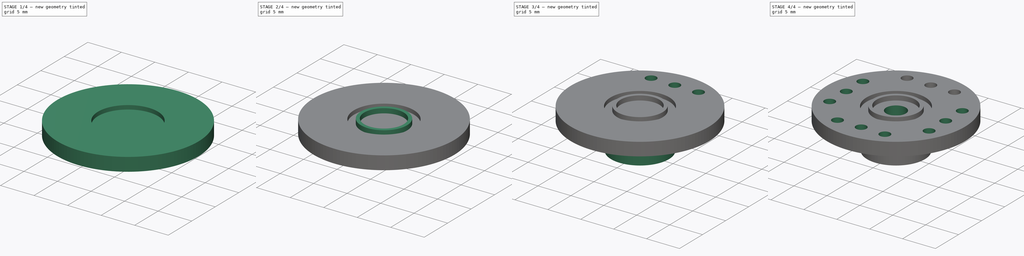
[diagram: build sequence overview — one tinted view per stage of 4, left to right]
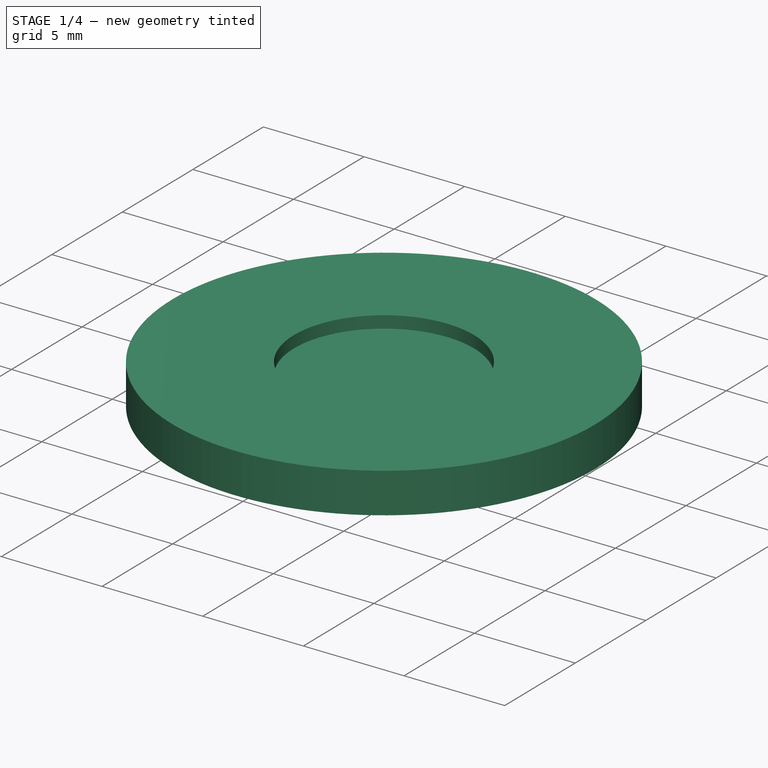
[diagram: stage 1 of 4 — iso view after this stage's code; geometry added in this stage tinted green]
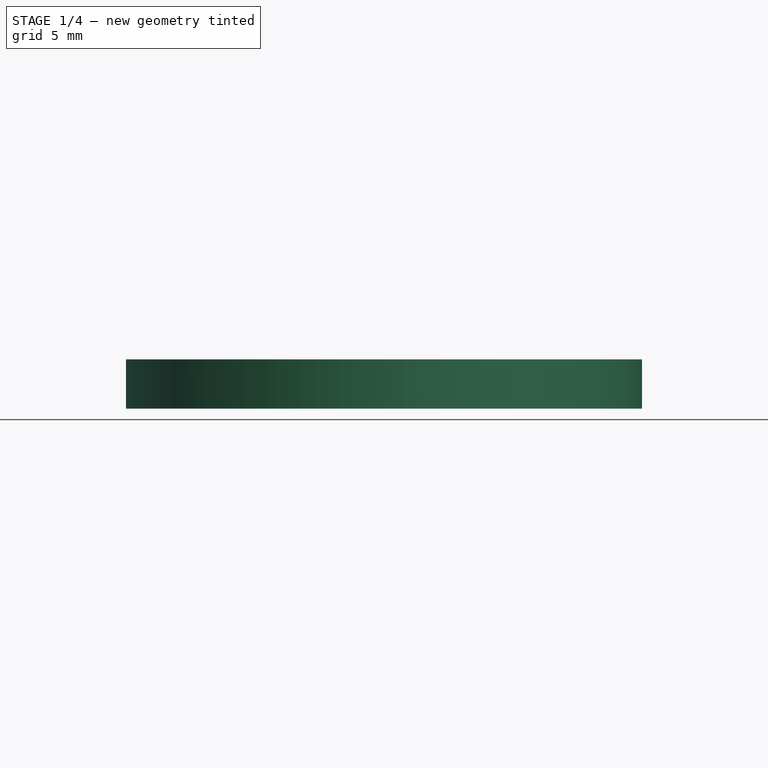
[diagram: stage 1 of 4 — front view after this stage's code; geometry added in this stage tinted green]
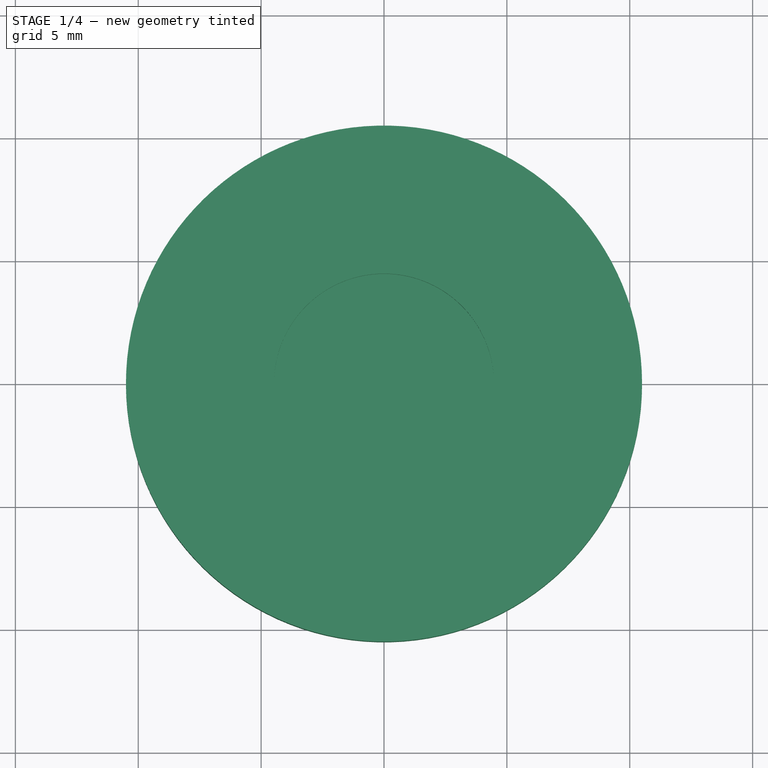
[diagram: stage 1 of 4 — top view after this stage's code; geometry added in this stage tinted green]
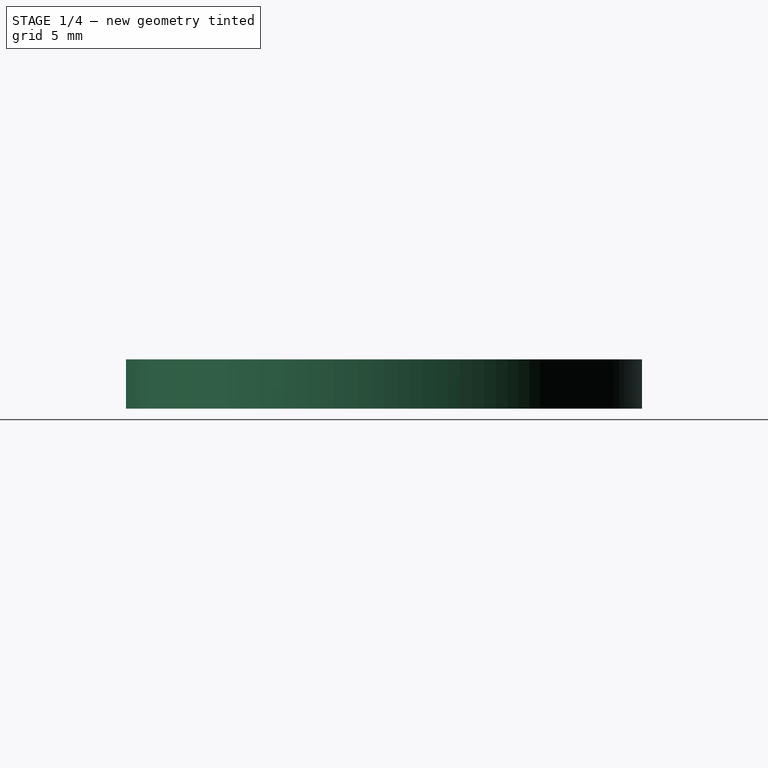
[diagram: stage 1 of 4 — right view after this stage's code; geometry added in this stage tinted green]
FCSTD DOCUMENT  (FreeCAD 0.14R3702 (Git))
Label: SM-S4303R-small-rounded-horn
License: CC-BY 3.0
LicenseURL: http://creativecommons.org/licenses/by/3.0/
objects: Sketcher::SketchObject×8, PartDesign::Pad×4, PartDesign::Pocket×4, PartDesign::PolarPattern×1, Part::Feature×1
note: 26 computed .brp shape members not serialized (recipe doc carries the construction recipe); baked Part::Feature solids carry a one-line shape summary decoded from their .brp

FEATURE [Sketcher::SketchObject] Sketch  label="horn-body-1-sketch"
  sketch-geometry (1):
    g0: Circle CenterX=0 CenterY=0 CenterZ=0 NormalX=0 NormalY=0 NormalZ=1 Radius=10.5
  constraints (2):
    c: Coincident(g0,g-1)
    c: Radius(g0) = 10.5
FEATURE [PartDesign::Pad] Pad  label="horn-body"
  Length = 2
  Length2 = 100
  Sketch = -> Sketch
  Type = 0
FEATURE [Sketcher::SketchObject] Sketch001  label="top-part-1-sketch"
  Placement = pos=(0,0,2) rot=(0,0,1;0rad)
  Support = -> Pad [Face3]
  sketch-geometry (1):
    g0: Circle CenterX=0 CenterY=0 CenterZ=0 NormalX=0 NormalY=0 NormalZ=1 Radius=4.475
  constraints (2):
    c: Coincident(g0,g-1)
    c: Radius(g0) = 4.475
FEATURE [PartDesign::Pocket] Pocket  label="top-part-1"
  Length = 0.6
  Sketch = -> Sketch001
  Type = 0
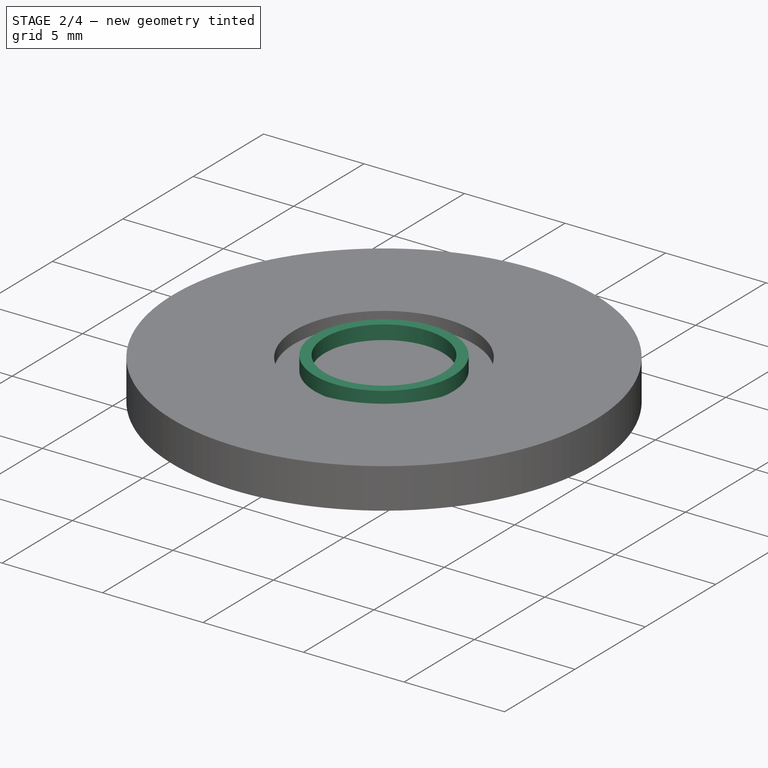
[diagram: stage 2 of 4 — iso view after this stage's code; geometry added in this stage tinted green]
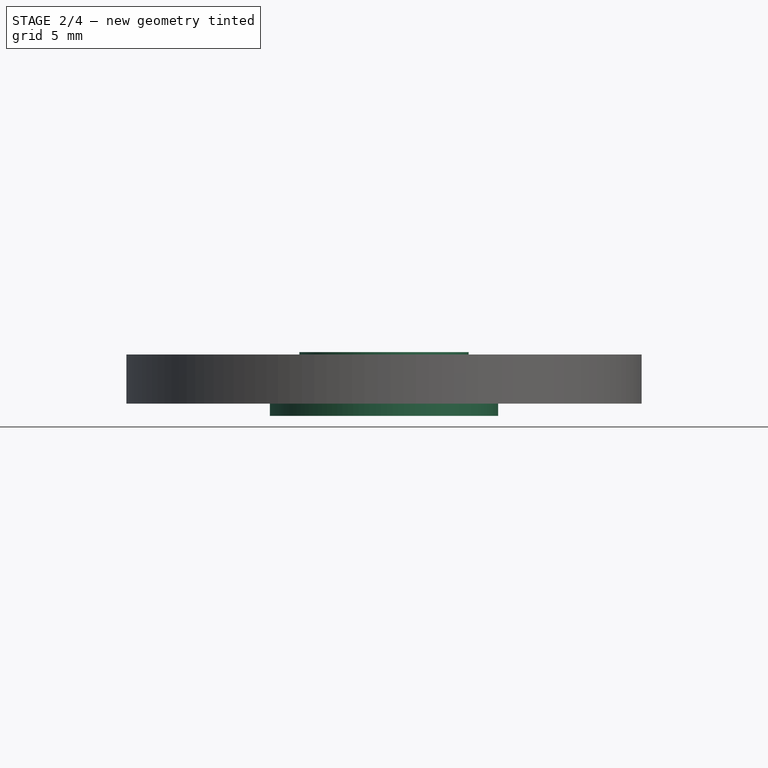
[diagram: stage 2 of 4 — front view after this stage's code; geometry added in this stage tinted green]
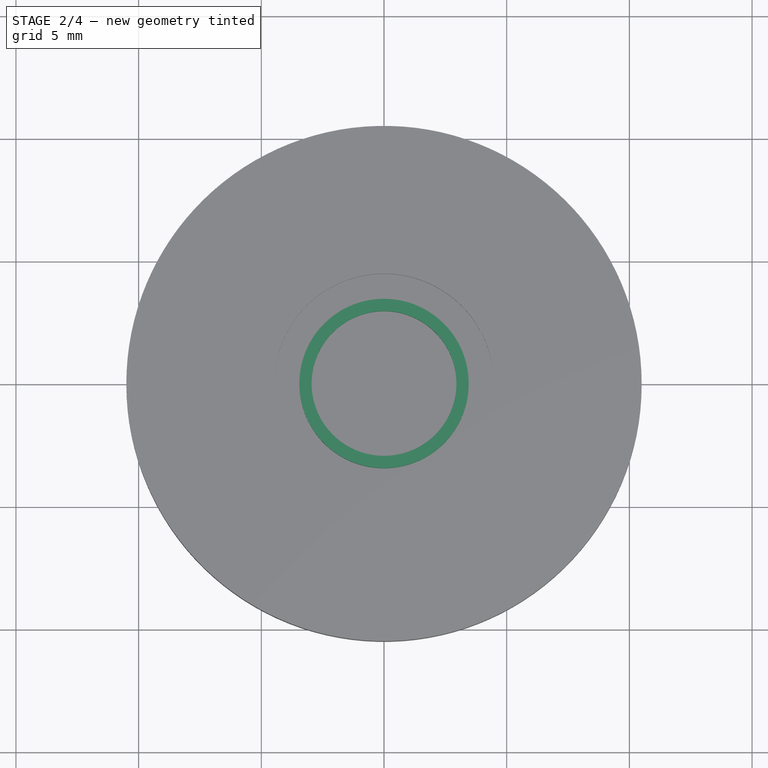
[diagram: stage 2 of 4 — top view after this stage's code; geometry added in this stage tinted green]
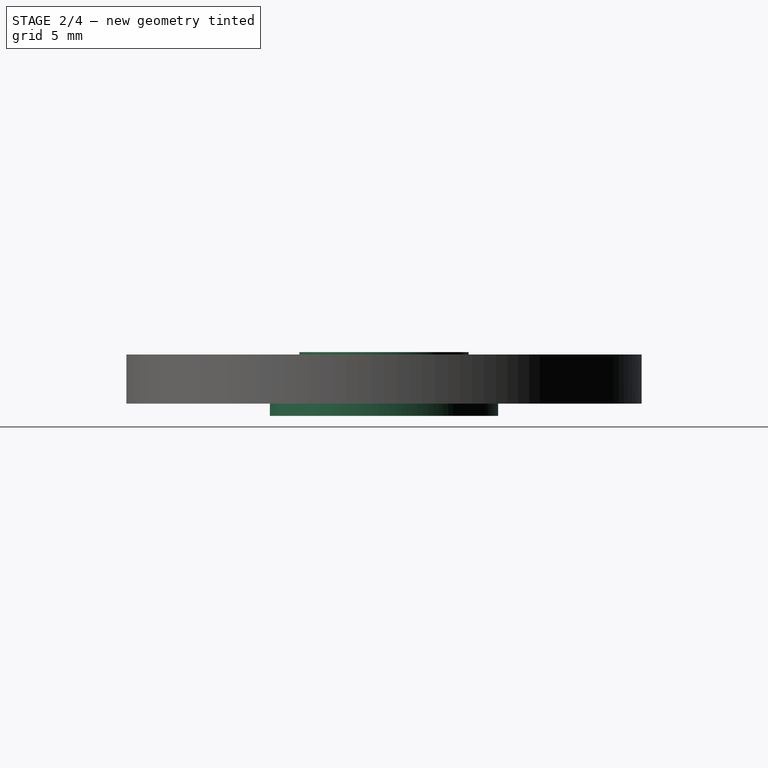
[diagram: stage 2 of 4 — right view after this stage's code; geometry added in this stage tinted green]
FEATURE [Sketcher::SketchObject] Sketch002  label="top-part-2-sketch"
  Placement = pos=(0,0,1.4) rot=(0,0,1;0rad)
  Support = -> Pocket [Face5]
  sketch-geometry (2):
    g0: Circle CenterX=0 CenterY=0 CenterZ=0 NormalX=0 NormalY=0 NormalZ=1 Radius=3.45
    g1: Circle CenterX=0 CenterY=0 CenterZ=0 NormalX=0 NormalY=0 NormalZ=1 Radius=2.95
  constraints (4):
    c: Coincident(g0,g-1)
    c: Radius(g0) = 3.45
    c: Coincident(g1,g-1)
    c: Radius(g1) = 2.95
FEATURE [PartDesign::Pad] Pad001  label="top-part-2"
  Length = 0.7
  Length2 = 100
  Sketch = -> Sketch002
  Type = 0
FEATURE [Sketcher::SketchObject] Sketch003  label="bottom-part-1-sketch"
  Placement = pos=(0,0,0) rot=(1,0,0;3.14159rad)
  Support = -> Pad001 [Face2]
  sketch-geometry (1):
    g0: Circle CenterX=0 CenterY=0 CenterZ=0 NormalX=0 NormalY=0 NormalZ=1 Radius=4.65
  constraints (2):
    c: Coincident(g0,g-1)
    c: Radius(g0) = 4.65
FEATURE [PartDesign::Pad] Pad002  label="bottom-part-1"
  Length = 0.5
  Length2 = 100
  Sketch = -> Sketch003
  Type = 0
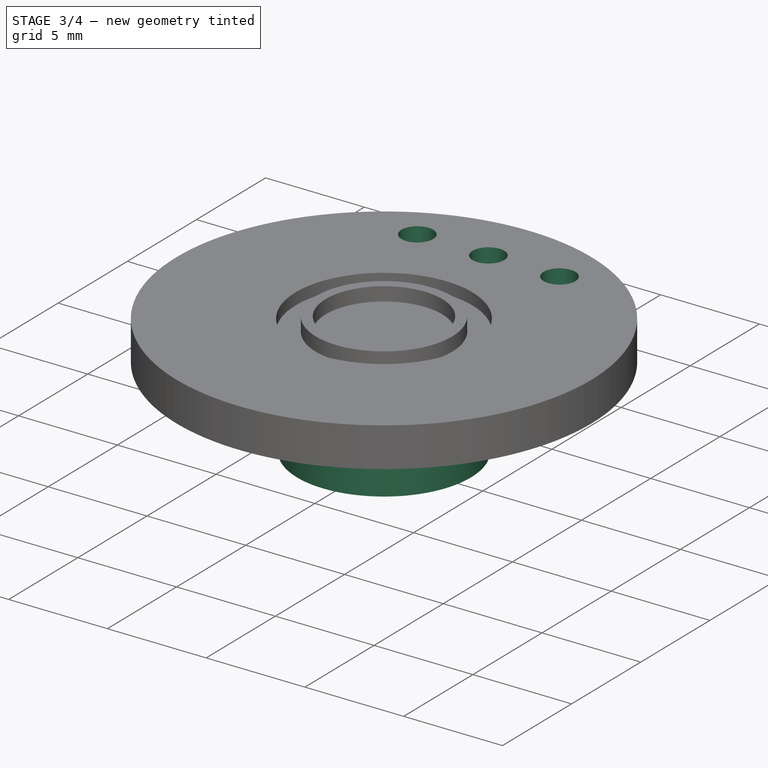
[diagram: stage 3 of 4 — iso view after this stage's code; geometry added in this stage tinted green]
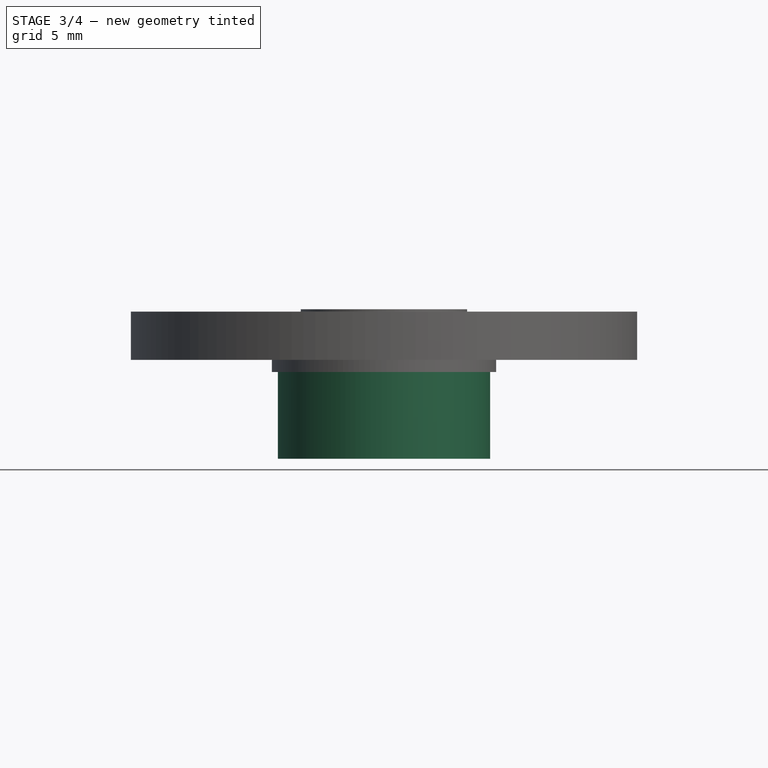
[diagram: stage 3 of 4 — front view after this stage's code; geometry added in this stage tinted green]
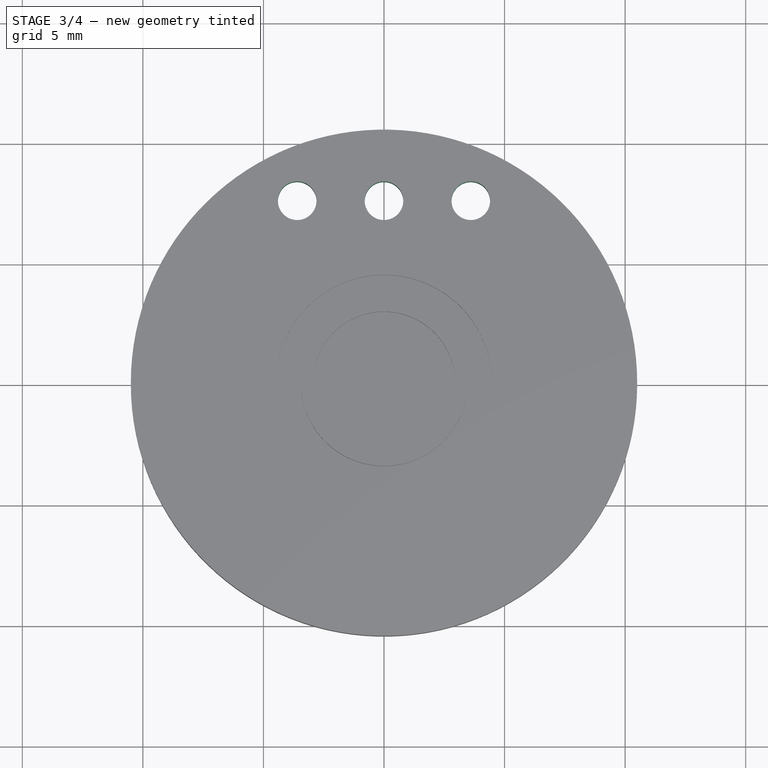
[diagram: stage 3 of 4 — top view after this stage's code; geometry added in this stage tinted green]
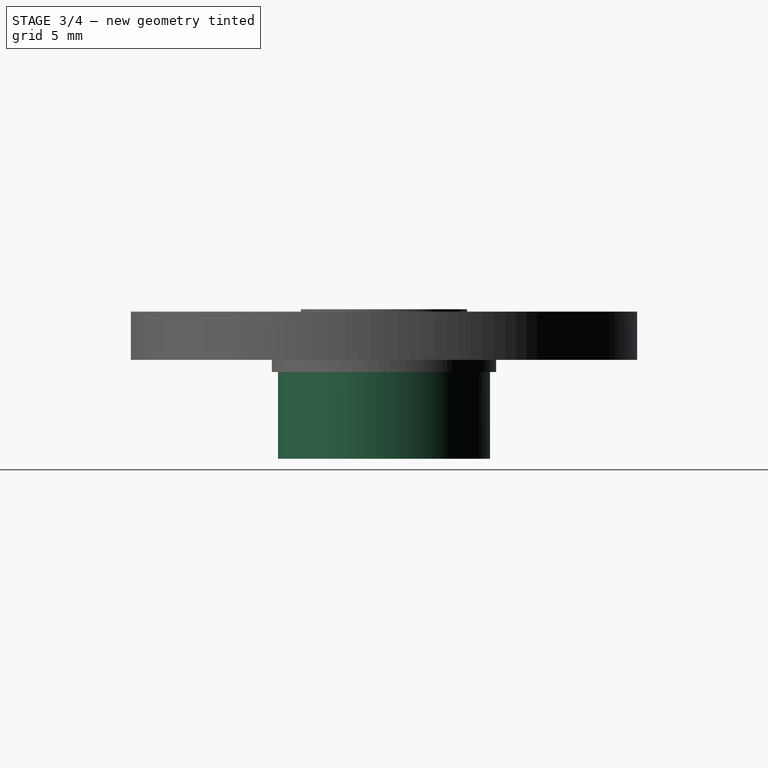
[diagram: stage 3 of 4 — right view after this stage's code; geometry added in this stage tinted green]
FEATURE [Sketcher::SketchObject] Sketch004  label="bottom-part-2-sketch"
  Placement = pos=(0,0,-0.5) rot=(1,0,0;3.14159rad)
  Support = -> Pad002 [Face6]
  sketch-geometry (1):
    g0: Circle CenterX=0 CenterY=0 CenterZ=0 NormalX=0 NormalY=0 NormalZ=1 Radius=4.4
  constraints (2):
    c: Coincident(g0,g-1)
    c: Radius(g0) = 4.4
FEATURE [PartDesign::Pad] Pad003  label="bottom-part2"
  Length = 3.6
  Length2 = 100
  Sketch = -> Sketch004
  Type = 0
FEATURE [Sketcher::SketchObject] Sketch005  label="bottom-part3-sketch"
  Placement = pos=(0,0,-4.1) rot=(1,0,0;3.14159rad)
  Support = -> Pad003 [Face10]
  sketch-geometry (1):
    g0: Circle CenterX=0 CenterY=0 CenterZ=0 NormalX=0 NormalY=0 NormalZ=1 Radius=2.9
  constraints (2):
    c: Coincident(g0,g-1)
    c: Radius(g0) = 2.9
FEATURE [PartDesign::Pocket] Pocket001  label="bottom-part3"
  Length = 3.8
  Sketch = -> Sketch005
  Type = 0
FEATURE [Sketcher::SketchObject] Sketch006  label="drills-master-sketch"
  Placement = pos=(0,0,2) rot=(0,0,1;0rad)
  Support = -> Pocket001 [Face3]
  sketch-geometry (8):
    g0: Circle CenterX=0 CenterY=7.55 CenterZ=0 NormalX=0 NormalY=0 NormalZ=1 Radius=0.8
    g1: LineSegment [constr] StartX=0 StartY=7.55 StartZ=0 EndX=0 EndY=0 EndZ=0
    g2: GeomPoint [constr] X=0 Y=6.75 Z=0
    g3: LineSegment [constr] StartX=-3.6 StartY=7.55 StartZ=0 EndX=3.6 EndY=7.55 EndZ=0
    g4: Circle CenterX=-3.6 CenterY=7.55 CenterZ=0 NormalX=0 NormalY=0 NormalZ=1 Radius=0.8
    g5: Circle CenterX=3.6 CenterY=7.55 CenterZ=0 NormalX=0 NormalY=0 NormalZ=1 Radius=0.8
    g6: GeomPoint [constr] X=-2.8 Y=7.55 Z=0
    g7: GeomPoint [constr] X=2.8 Y=7.55 Z=0
  constraints (20):
    c: PointOnObject(g0,g-2)
    c: Radius(g0) = 0.8
    c: Vertical(g1)
    c: Coincident(g1,g0)
    c: Coincident(g1,g-1)
    c: PointOnObject(g2,g1)
    c: PointOnObject(g2,g0)
    c: DistanceY(g-1,g2) = 6.75
    c: Horizontal(g3)
    c: PointOnObject(g0,g3)
    c: Symmetric(g3,g3,g-2)
    c: Coincident(g4,g3)
    c: Coincident(g5,g3)
    c: Equal(g4,g0)
    c: Equal(g0,g5)
    c: PointOnObject(g6,g3)
    c: PointOnObject(g6,g4)
    c: PointOnObject(g7,g3)
    c: PointOnObject(g7,g5)
    c: DistanceX(g6,g7) = 5.6
FEATURE [PartDesign::Pocket] Pocket002  label="drills-master"
  Length = 5
  Sketch = -> Sketch006
  Type = 1
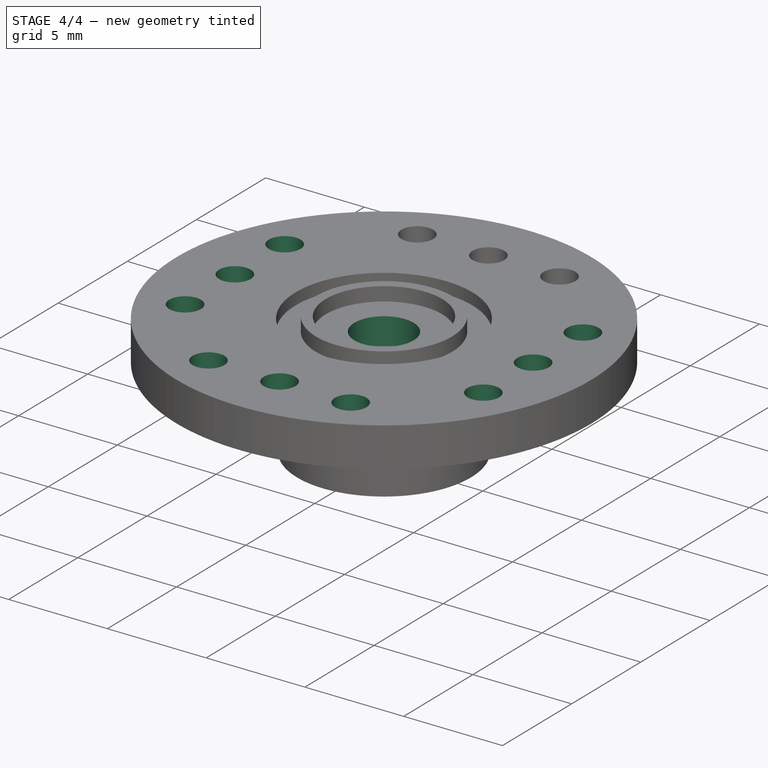
[diagram: stage 4 of 4 — iso view after this stage's code; geometry added in this stage tinted green]
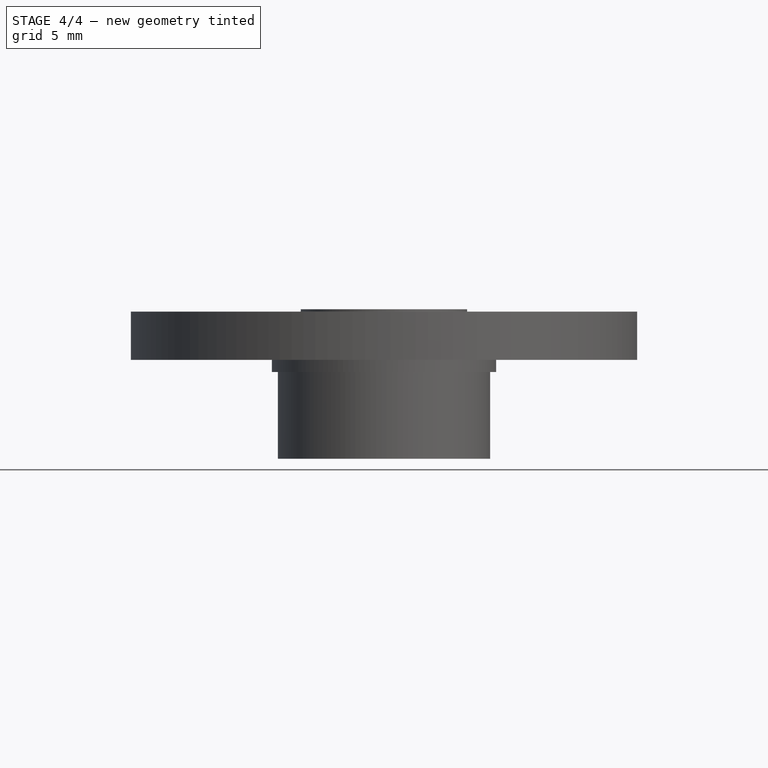
[diagram: stage 4 of 4 — front view after this stage's code; geometry added in this stage tinted green]
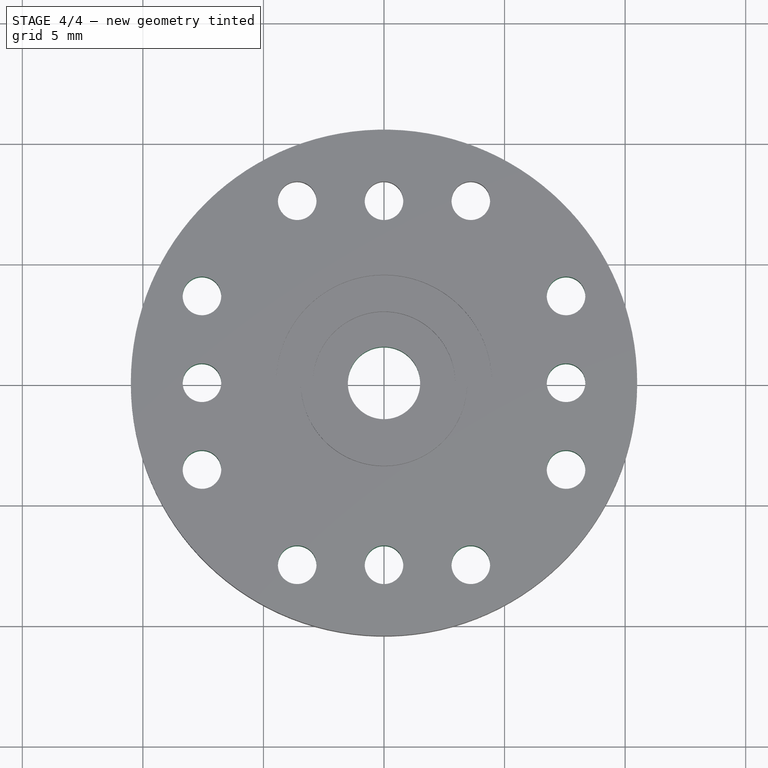
[diagram: stage 4 of 4 — top view after this stage's code; geometry added in this stage tinted green]
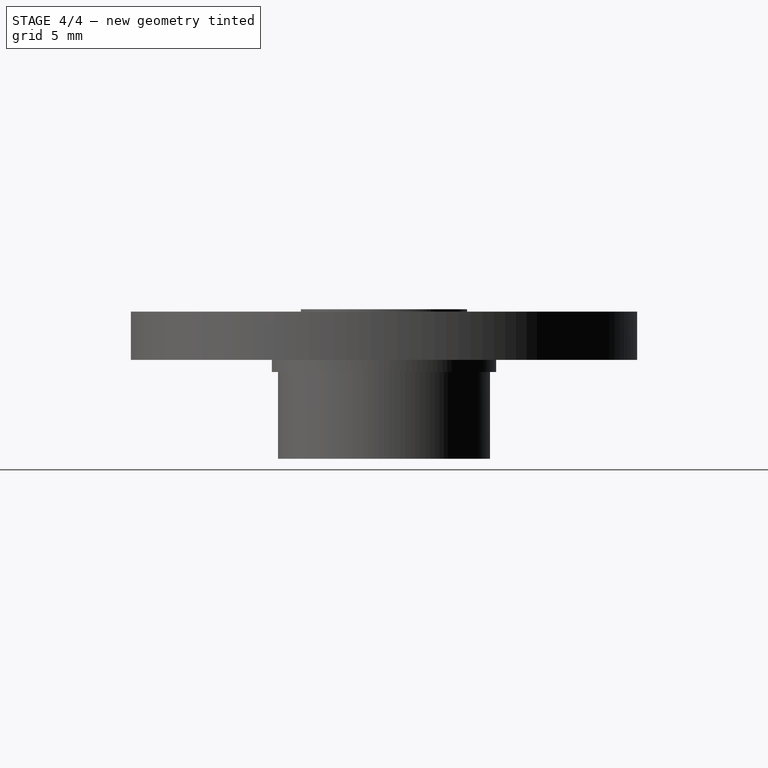
[diagram: stage 4 of 4 — right view after this stage's code; geometry added in this stage tinted green]
FEATURE [PartDesign::PolarPattern] PolarPattern  label="horn-drills"
  Angle = 360
  Axis = -> Sketch006 [N_Axis]
  Occurrences = 4
  Originals = -> [Pocket002]
FEATURE [Sketcher::SketchObject] Sketch007  label="shaft-drill-sketch"
  Placement = pos=(0,0,1.4) rot=(0,0,1;0rad)
  Support = -> PolarPattern [Face27]
  sketch-geometry (1):
    g0: Circle CenterX=0 CenterY=0 CenterZ=0 NormalX=0 NormalY=0 NormalZ=1 Radius=1.5
  constraints (2):
    c: Coincident(g0,g-1)
    c: Radius(g0) = 1.5
FEATURE [PartDesign::Pocket] Pocket003  label="shaft-drill"
  Length = 5
  Sketch = -> Sketch007
  Type = 1
FEATURE [Part::Feature] Pocket003001  label="small-rounded-horn-final"
  shape: bbox 21 x 21 x 6.2 mm, 28 faces (baked)
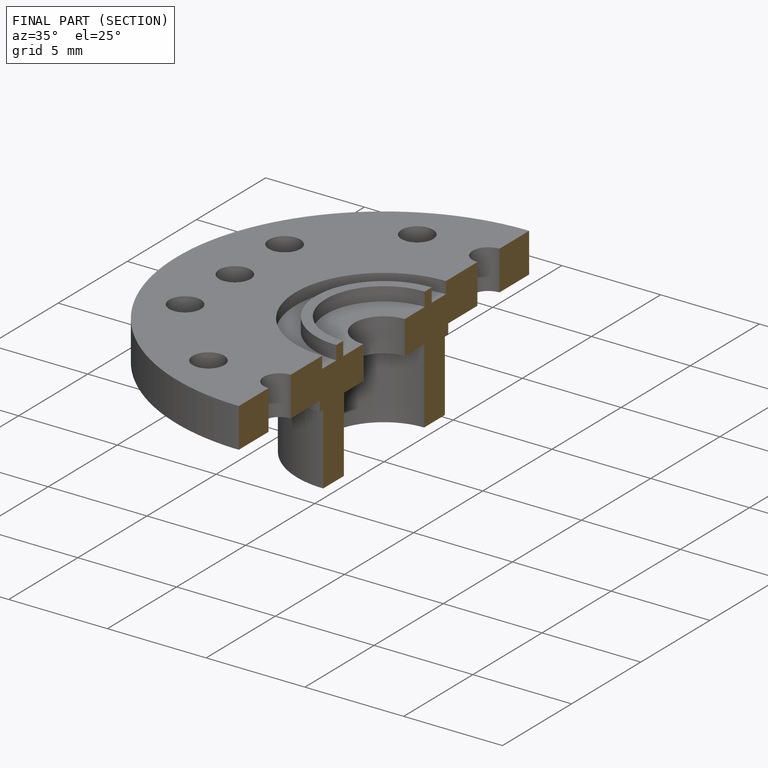
[diagram: finished part — half-section view (interior)]
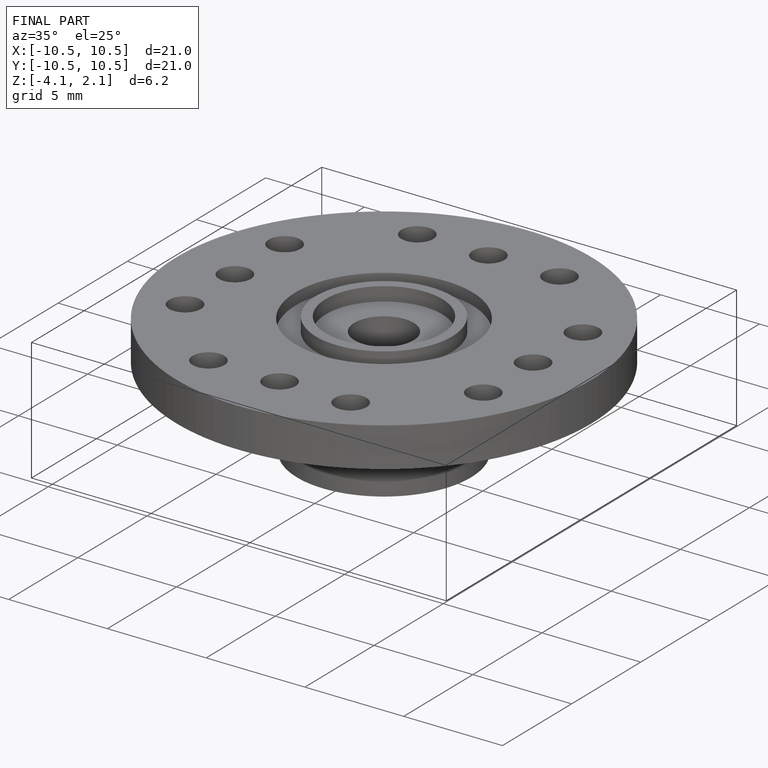
[diagram: finished part — iso view with bounding-box wireframe]
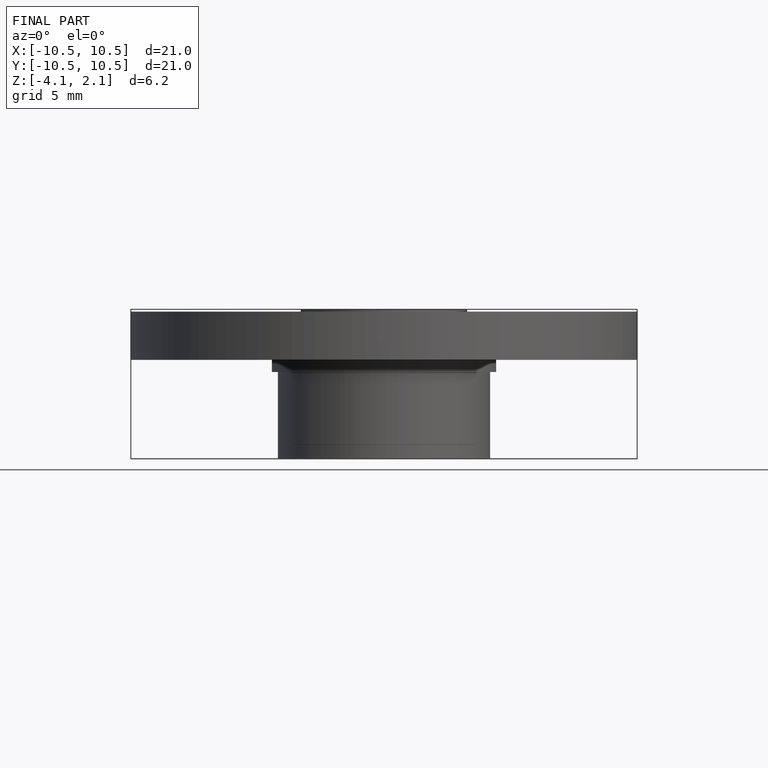
[diagram: finished part — front view with bounding-box wireframe]
